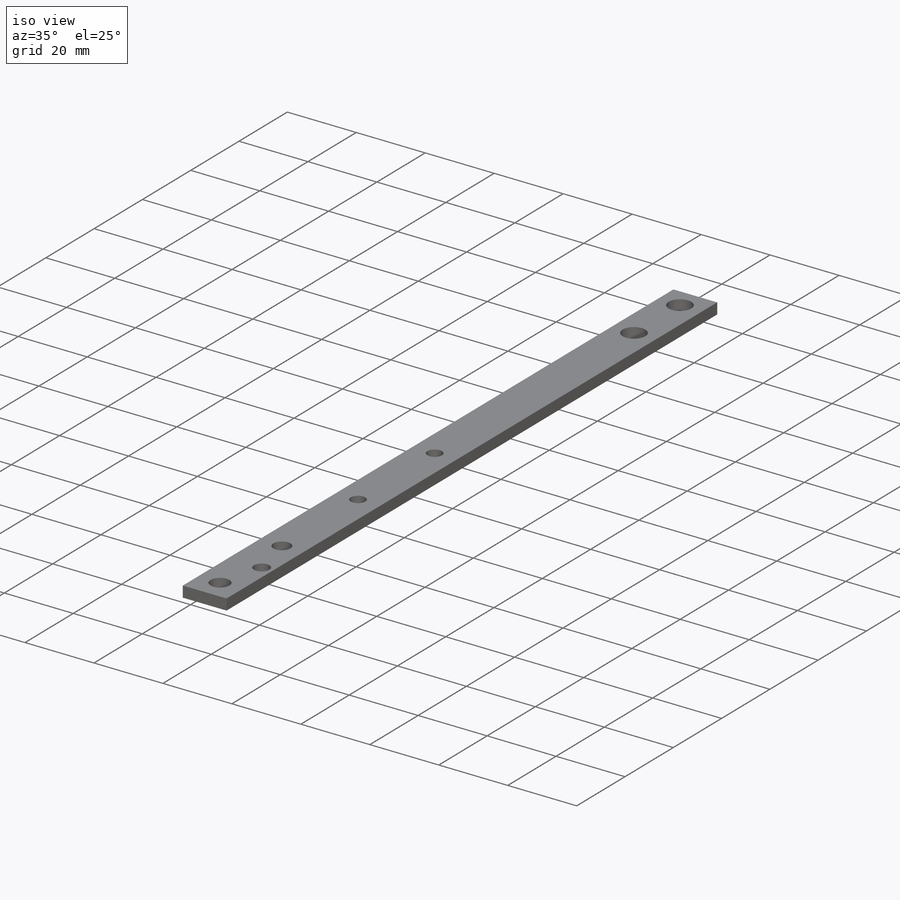
[diagram: iso view]
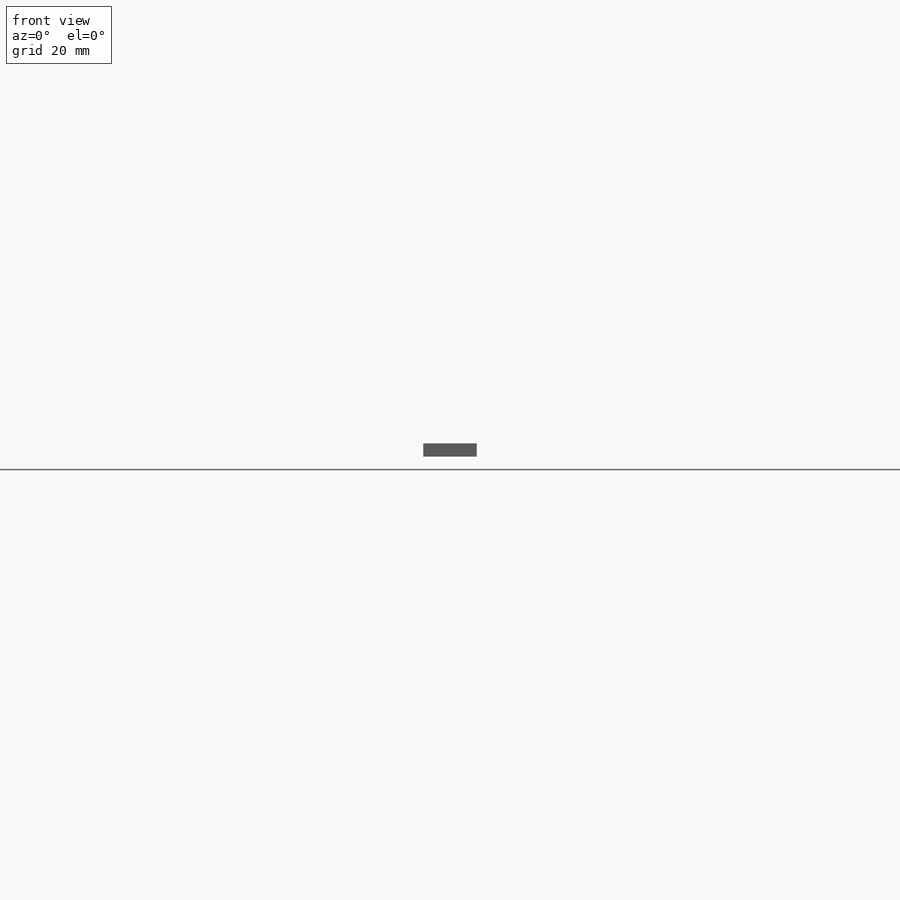
[diagram: front view]
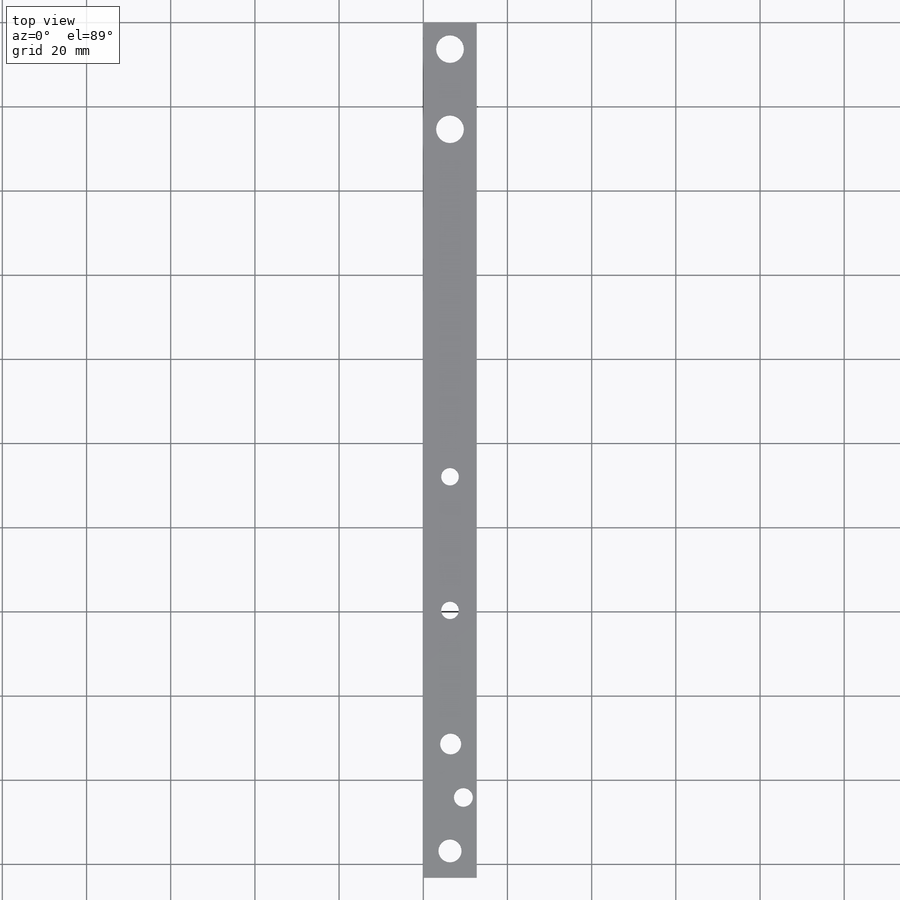
[diagram: top view]
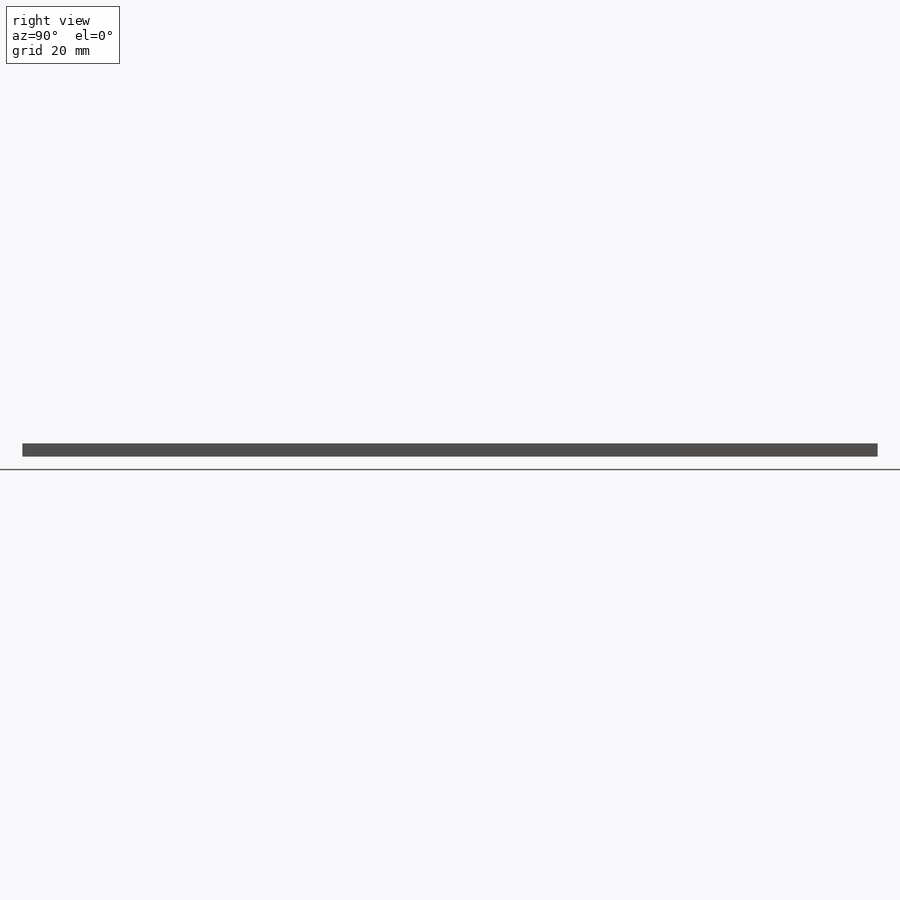
[diagram: right view]
SOLIDWORKS PART (.sldprt)
format: sldprt  version: not decoded by parser v0  size: 266,752 bytes
history: native  units: mm
features: sketch x11, hole x5, material x1, extrude x1 (+11 scaffold rows collapsed)
feature tree (29):
  scaffold x11  (default folders/planes/origin — collapsed)
  material  "Copper"
  sketch  "Sketch1"  dims[D1=12.7mm D2=3.175mm]
  extrude  "Boss-Extrude1"  Depth=203.2mm
  hole  "M6 Clearance Hole1"  Diameter=6.6mm Depth=3.175mm
  sketch  "Sketch3"  dims[c1.D1=6.35mm c1.D2=19.05mm c2.D1=6.35mm c2.D2=19.05mm]
  sketch  "Sketch2"  dims[hole-wizard template sketch: 60 standard entries collapsed; hole parameters kept: c18.Thru Hole Depth=3.175mm]
  hole  "M5x0.8 Tapped Hole1"  Diameter=4.2mm Depth=3.175mm
  sketch  "Sketch5"  dims[D1=12.7mm D2=31.75mm]
  sketch  "Sketch4"  dims[hole-wizard template sketch: 60 standard entries collapsed; hole parameters kept: c18.Thru Tap Drill Depth=3.175mm]
  hole  "M6x1.0 Tapped Hole1"  Diameter=5mm Depth=3.175mm
  sketch  "Sketch7"
  sketch  "Sketch6"  dims[hole-wizard template sketch: 59 standard entries collapsed; hole parameters kept: c18.Thread Major Dia.=5.0mm c18.Thru Tap Drill Depth=3.175mm]
  hole  "M5 Clearance Hole1"  Diameter=5.5mm Depth=3.175mm
  sketch  "Sketch9"  dims[D1=6.35mm]
  sketch  "Sketch8"  dims[hole-wizard template sketch: 60 standard entries collapsed; hole parameters kept: c18.Thru Hole Depth=3.175mm]
  hole  "M4 Clearance Hole1"  Diameter=4.5mm Depth=3.175mm
  sketch  "Sketch11"
  sketch  "Sketch10"  dims[hole-wizard template sketch: 60 standard entries collapsed; hole parameters kept: c18.Thru Hole Depth=3.175mm]
decode coverage: 15 of 17 modeling features carry decoded parameters
note: ~ marks probable driven/reference dimensions
summary: Diameter pulled from absorbed wizard sketch
note: suppression state not decoded; provenance and decode notes live in map.json
